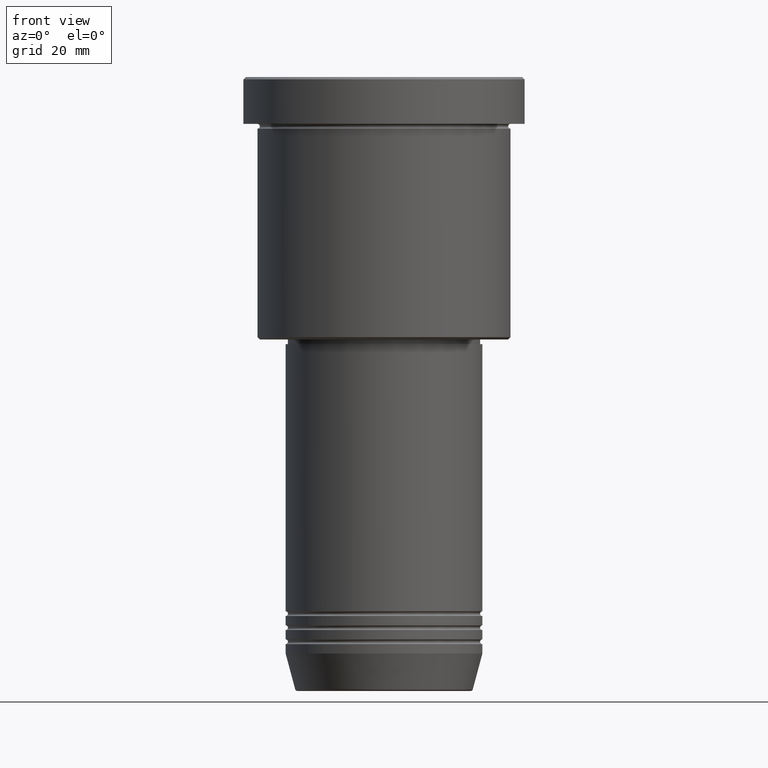
[diagram: clean part render]
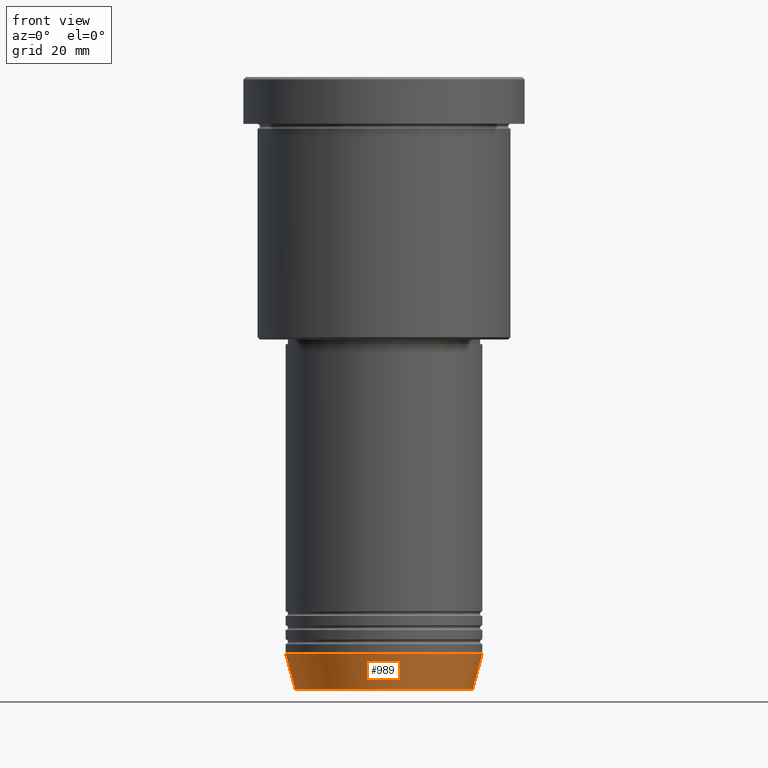
[diagram: same view with one face highlighted and labeled with its STEP entity id]
A machine part, front view. The second image highlights one B-rep face of the part: STEP entity #989.
In plain terms, the highlighted conical surface has half-angle 15 deg.
Its self-contained STEP definition (entity closure, byte-faithful):
#31 = ORIENTED_EDGE ( 'NONE', *, *, #958, .F. ) ;
#37 = FACE_OUTER_BOUND ( 'NONE', #464, .T. ) ;
#60 = CARTESIAN_POINT ( 'NONE',  ( -21.00000000000000000, 2.571758278209441661E-15, -123.0000000000000000 ) ) ;
#109 = DIRECTION ( 'NONE',  ( -0.000000000000000000, -0.000000000000000000, 1.000000000000000000 ) ) ;
#162 = AXIS2_PLACEMENT_3D ( 'NONE', #650, #109, #1007 ) ;
#165 = DIRECTION ( 'NONE',  ( 0.2588190451025212391, 0.000000000000000000, 0.9659258262890680902 ) ) ;
#241 = AXIS2_PLACEMENT_3D ( 'NONE', #767, #322, #633 ) ;
#276 = EDGE_CURVE ( 'NONE', #920, #345, #623, .T. ) ;
#287 = EDGE_CURVE ( 'NONE', #427, #1033, #1054, .T. ) ;
#314 = CARTESIAN_POINT ( 'NONE',  ( 18.95570587970606269, 0.000000000000000000, -130.6294095225512706 ) ) ;
#322 = DIRECTION ( 'NONE',  ( -0.000000000000000000, -0.000000000000000000, 1.000000000000000000 ) ) ;
#345 = VERTEX_POINT ( 'NONE', #987 ) ;
#368 = ORIENTED_EDGE ( 'NONE', *, *, #287, .T. ) ;
#380 = CIRCLE ( 'NONE', #162, 21.00000000000000000 ) ;
#386 = DIRECTION ( 'NONE',  ( -0.000000000000000000, -0.000000000000000000, 1.000000000000000000 ) ) ;
#427 = VERTEX_POINT ( 'NONE', #314 ) ;
#464 = EDGE_LOOP ( 'NONE', ( #953, #906, #368, #31 ) ) ;
#522 = CIRCLE ( 'NONE', #871, 18.95570587970606269 ) ;
#623 = LINE ( 'NONE', #60, #830 ) ;
#633 = DIRECTION ( 'NONE',  ( 1.000000000000000000, 0.000000000000000000, 0.000000000000000000 ) ) ;
#649 = EDGE_CURVE ( 'NONE', #920, #427, #522, .T. ) ;
#650 = CARTESIAN_POINT ( 'NONE',  ( 0.000000000000000000, 0.000000000000000000, -123.0000000000000000 ) ) ;
#706 = CARTESIAN_POINT ( 'NONE',  ( 21.00000000000000000, 0.000000000000000000, -123.0000000000000000 ) ) ;
#717 = DIRECTION ( 'NONE',  ( 1.000000000000000000, 0.000000000000000000, 0.000000000000000000 ) ) ;
#767 = CARTESIAN_POINT ( 'NONE',  ( 0.000000000000000000, 0.000000000000000000, -123.0000000000000000 ) ) ;
#830 = VECTOR ( 'NONE', #880, 1000.000000000000114 ) ;
#836 = CARTESIAN_POINT ( 'NONE',  ( 0.000000000000000000, 0.000000000000000000, -130.6294095225512706 ) ) ;
#871 = AXIS2_PLACEMENT_3D ( 'NONE', #836, #386, #717 ) ;
#880 = DIRECTION ( 'NONE',  ( -0.2588190451025212391, 3.169619151431771721E-17, 0.9659258262890680902 ) ) ;
#906 = ORIENTED_EDGE ( 'NONE', *, *, #649, .T. ) ;
#920 = VERTEX_POINT ( 'NONE', #1131 ) ;
#935 = CONICAL_SURFACE ( 'NONE', #241, 21.00000000000000000, 0.2617993877991499629 ) ;
#953 = ORIENTED_EDGE ( 'NONE', *, *, #276, .F. ) ;
#958 = EDGE_CURVE ( 'NONE', #345, #1033, #380, .T. ) ;
#987 = CARTESIAN_POINT ( 'NONE',  ( -21.00000000000000000, 2.571758278209441661E-15, -123.0000000000000000 ) ) ;
#989 = ADVANCED_FACE ( 'NONE', ( #37 ), #935, .T. ) ;
#992 = CARTESIAN_POINT ( 'NONE',  ( 21.00000000000000000, 0.000000000000000000, -123.0000000000000000 ) ) ;
#1007 = DIRECTION ( 'NONE',  ( 1.000000000000000000, 0.000000000000000000, 0.000000000000000000 ) ) ;
#1033 = VERTEX_POINT ( 'NONE', #992 ) ;
#1054 = LINE ( 'NONE', #706, #1129 ) ;
#1129 = VECTOR ( 'NONE', #165, 1000.000000000000114 ) ;
#1131 = CARTESIAN_POINT ( 'NONE',  ( -18.95570587970606269, 2.446581365662755730E-15, -130.6294095225512706 ) ) ;